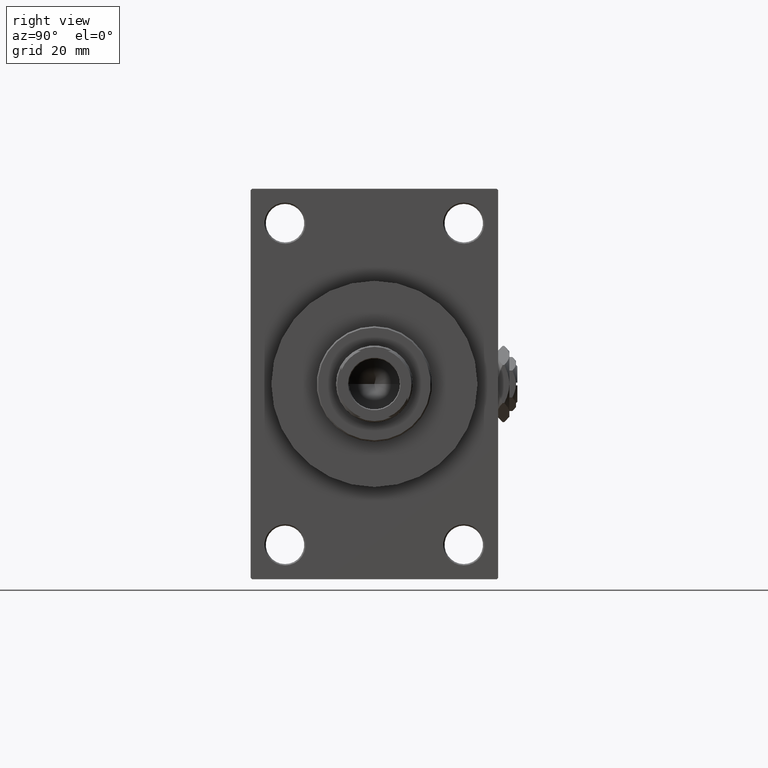
[diagram: clean part render]
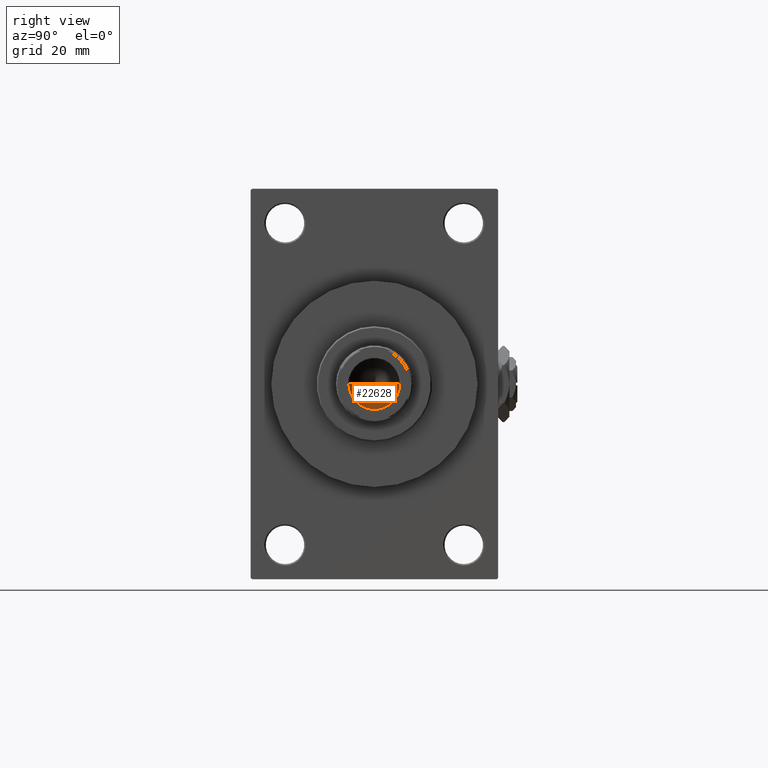
[diagram: same view with one face highlighted and labeled with its STEP entity id]
A machine part, right view. The second image highlights one B-rep face of the part: STEP entity #22628.
In plain terms, the highlighted conical surface has half-angle 59 deg.
Its self-contained STEP definition (entity closure, byte-faithful):
#544 = CARTESIAN_POINT ( 'NONE',  ( -1.063698371622866236E-14, 0.000000000000000000, 109.4420392739950501 ) ) ;
#572 = CONICAL_SURFACE ( 'NONE', #47210, 9.249999999999994671, 1.029744258676653423 ) ;
#885 = CARTESIAN_POINT ( 'NONE',  ( 9.249999999999994671, 0.000000000000000000, 114.9999999999999858 ) ) ;
#4607 = DIRECTION ( 'NONE',  ( -0.000000000000000000, -0.000000000000000000, 1.000000000000000000 ) ) ;
#7927 = CARTESIAN_POINT ( 'NONE',  ( 0.000000000000000000, 0.000000000000000000, 114.9999999999999858 ) ) ;
#10061 = CARTESIAN_POINT ( 'NONE',  ( -9.249999999999994671, 1.132798289211300909E-15, 114.9999999999999858 ) ) ;
#10257 = CARTESIAN_POINT ( 'NONE',  ( -9.249999999999994671, 1.132798289211300909E-15, 114.9999999999999858 ) ) ;
#13863 = LINE ( 'NONE', #28713, #24938 ) ;
#14464 = DIRECTION ( 'NONE',  ( -0.8571673007021117785, 1.049727191138617956E-16, 0.5150380749100550437 ) ) ;
#15590 = DIRECTION ( 'NONE',  ( 1.000000000000000000, 0.000000000000000000, 0.000000000000000000 ) ) ;
#15979 = EDGE_CURVE ( 'NONE', #21259, #34027, #29067, .T. ) ;
#20738 = EDGE_CURVE ( 'NONE', #45466, #34027, #37788, .T. ) ;
#21162 = AXIS2_PLACEMENT_3D ( 'NONE', #42727, #4607, #27365 ) ;
#21259 = VERTEX_POINT ( 'NONE', #544 ) ;
#22628 = ADVANCED_FACE ( 'NONE', ( #35106 ), #572, .F. ) ;
#23446 = EDGE_LOOP ( 'NONE', ( #36415, #29884, #40120 ) ) ;
#24938 = VECTOR ( 'NONE', #44072, 1000.000000000000000 ) ;
#27365 = DIRECTION ( 'NONE',  ( 1.000000000000000000, 0.000000000000000000, 0.000000000000000000 ) ) ;
#27454 = DIRECTION ( 'NONE',  ( -0.000000000000000000, -0.000000000000000000, 1.000000000000000000 ) ) ;
#28713 = CARTESIAN_POINT ( 'NONE',  ( 9.249999999999994671, 0.000000000000000000, 114.9999999999999858 ) ) ;
#29067 = LINE ( 'NONE', #10257, #43135 ) ;
#29884 = ORIENTED_EDGE ( 'NONE', *, *, #45030, .T. ) ;
#34027 = VERTEX_POINT ( 'NONE', #10061 ) ;
#35106 = FACE_OUTER_BOUND ( 'NONE', #23446, .T. ) ;
#36415 = ORIENTED_EDGE ( 'NONE', *, *, #15979, .F. ) ;
#37788 = CIRCLE ( 'NONE', #21162, 9.249999999999994671 ) ;
#40120 = ORIENTED_EDGE ( 'NONE', *, *, #20738, .T. ) ;
#42727 = CARTESIAN_POINT ( 'NONE',  ( 0.000000000000000000, 0.000000000000000000, 114.9999999999999858 ) ) ;
#43135 = VECTOR ( 'NONE', #14464, 1000.000000000000000 ) ;
#44072 = DIRECTION ( 'NONE',  ( 0.8571673007021117785, 0.000000000000000000, 0.5150380749100550437 ) ) ;
#45030 = EDGE_CURVE ( 'NONE', #21259, #45466, #13863, .T. ) ;
#45466 = VERTEX_POINT ( 'NONE', #885 ) ;
#47210 = AXIS2_PLACEMENT_3D ( 'NONE', #7927, #27454, #15590 ) ;